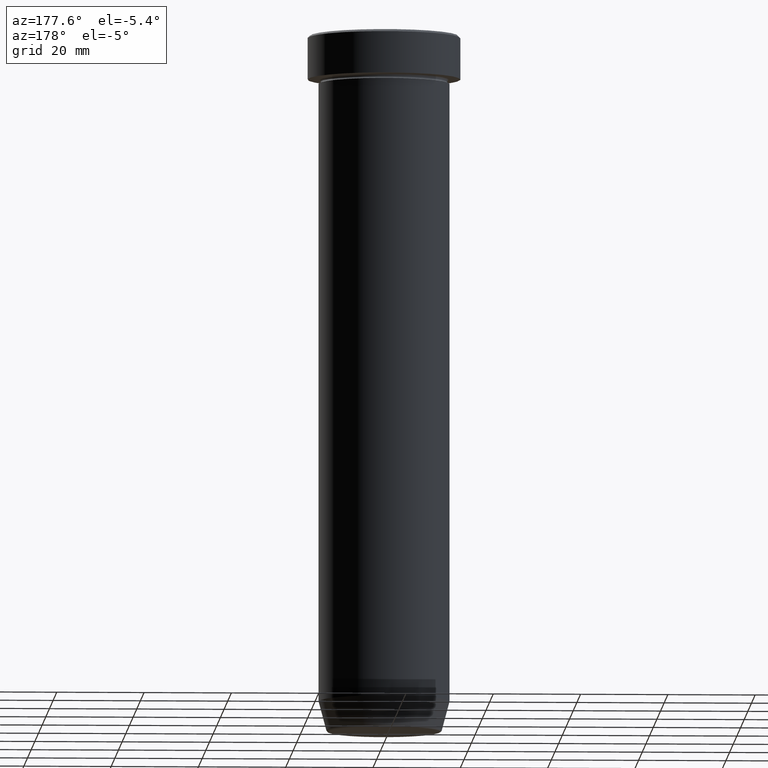
[diagram: clean part render]
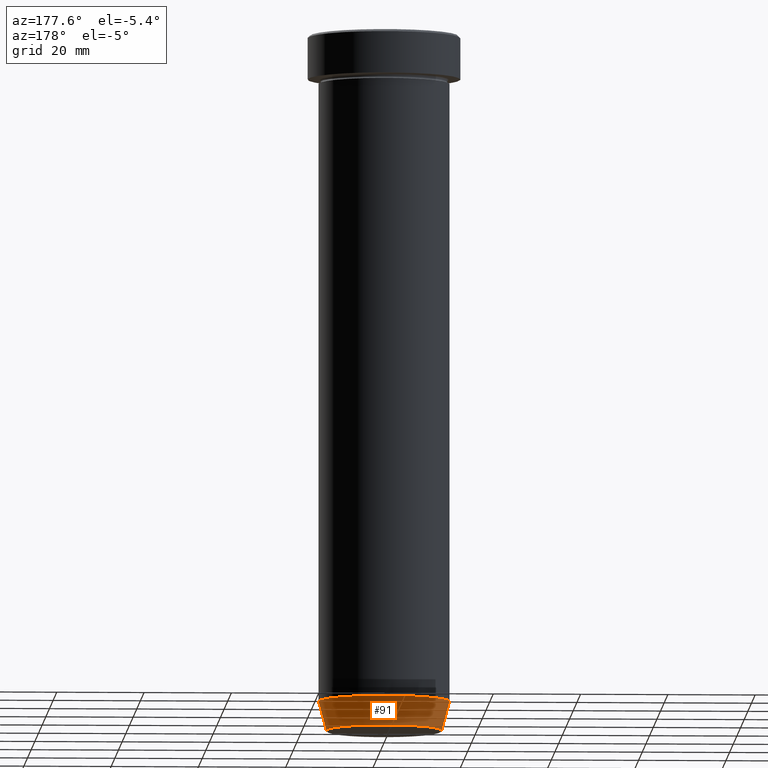
[diagram: same view with one face highlighted and labeled with its STEP entity id]
A machine part, auxiliary view. The second image highlights one B-rep face of the part: STEP entity #91.
In plain terms, the highlighted conical surface has half-angle 15 deg.
Its self-contained STEP definition (entity closure, byte-faithful):
#9 = EDGE_CURVE ( 'NONE', #395, #556, #225, .T. ) ;
#10 = DIRECTION ( 'NONE',  ( 1.000000000000000000, 0.000000000000000000, 0.000000000000000000 ) ) ;
#18 = CARTESIAN_POINT ( 'NONE',  ( 0.000000000000000000, 0.000000000000000000, -160.0000000000000000 ) ) ;
#71 = EDGE_CURVE ( 'NONE', #171, #395, #370, .T. ) ;
#81 = CARTESIAN_POINT ( 'NONE',  ( -13.12435565298212836, 1.607270014129603399E-15, -160.0000000000000000 ) ) ;
#91 = ADVANCED_FACE ( 'NONE', ( #110 ), #322, .T. ) ;
#102 = DIRECTION ( 'NONE',  ( -1.000000000000000000, 0.000000000000000000, 0.000000000000000000 ) ) ;
#110 = FACE_OUTER_BOUND ( 'NONE', #537, .T. ) ;
#147 = CARTESIAN_POINT ( 'NONE',  ( 0.000000000000000000, 0.000000000000000000, -159.6294095225512422 ) ) ;
#150 = ORIENTED_EDGE ( 'NONE', *, *, #557, .T. ) ;
#171 = VERTEX_POINT ( 'NONE', #290 ) ;
#173 = ORIENTED_EDGE ( 'NONE', *, *, #9, .F. ) ;
#219 = DIRECTION ( 'NONE',  ( -0.2588190451025210170, 3.169619151431768639E-17, 0.9659258262890680902 ) ) ;
#225 = CIRCLE ( 'NONE', #461, 15.00000000000000000 ) ;
#232 = VECTOR ( 'NONE', #382, 1000.000000000000114 ) ;
#237 = DIRECTION ( 'NONE',  ( -0.000000000000000000, -0.000000000000000000, 1.000000000000000000 ) ) ;
#271 = CIRCLE ( 'NONE', #362, 13.22365507213718772 ) ;
#276 = VECTOR ( 'NONE', #219, 1000.000000000000114 ) ;
#278 = CARTESIAN_POINT ( 'NONE',  ( -15.00000000000000000, 1.836970198721029589E-15, -152.9999999999999716 ) ) ;
#290 = CARTESIAN_POINT ( 'NONE',  ( 13.22365507213718949, 0.000000000000000000, -159.6294095225512422 ) ) ;
#304 = LINE ( 'NONE', #81, #276 ) ;
#308 = CARTESIAN_POINT ( 'NONE',  ( 15.00000000000000000, 0.000000000000000000, -152.9999999999999716 ) ) ;
#320 = DIRECTION ( 'NONE',  ( -0.000000000000000000, -0.000000000000000000, 1.000000000000000000 ) ) ;
#322 = CONICAL_SURFACE ( 'NONE', #595, 13.12435565298212836, 0.2617993877991497409 ) ;
#325 = ORIENTED_EDGE ( 'NONE', *, *, #71, .F. ) ;
#337 = CARTESIAN_POINT ( 'NONE',  ( -13.22365507213718949, 1.728200442216588386E-15, -159.6294095225512422 ) ) ;
#362 = AXIS2_PLACEMENT_3D ( 'NONE', #147, #462, #102 ) ;
#370 = LINE ( 'NONE', #376, #232 ) ;
#376 = CARTESIAN_POINT ( 'NONE',  ( 13.12435565298212836, 0.000000000000000000, -160.0000000000000000 ) ) ;
#382 = DIRECTION ( 'NONE',  ( 0.2588190451025210170, 0.000000000000000000, 0.9659258262890680902 ) ) ;
#383 = EDGE_CURVE ( 'NONE', #384, #556, #304, .T. ) ;
#384 = VERTEX_POINT ( 'NONE', #337 ) ;
#395 = VERTEX_POINT ( 'NONE', #308 ) ;
#461 = AXIS2_PLACEMENT_3D ( 'NONE', #498, #320, #586 ) ;
#462 = DIRECTION ( 'NONE',  ( -0.000000000000000000, -0.000000000000000000, 1.000000000000000000 ) ) ;
#491 = ORIENTED_EDGE ( 'NONE', *, *, #383, .T. ) ;
#498 = CARTESIAN_POINT ( 'NONE',  ( 0.000000000000000000, 0.000000000000000000, -152.9999999999999716 ) ) ;
#537 = EDGE_LOOP ( 'NONE', ( #150, #491, #173, #325 ) ) ;
#556 = VERTEX_POINT ( 'NONE', #278 ) ;
#557 = EDGE_CURVE ( 'NONE', #171, #384, #271, .T. ) ;
#586 = DIRECTION ( 'NONE',  ( 1.000000000000000000, 0.000000000000000000, 0.000000000000000000 ) ) ;
#595 = AXIS2_PLACEMENT_3D ( 'NONE', #18, #237, #10 ) ;